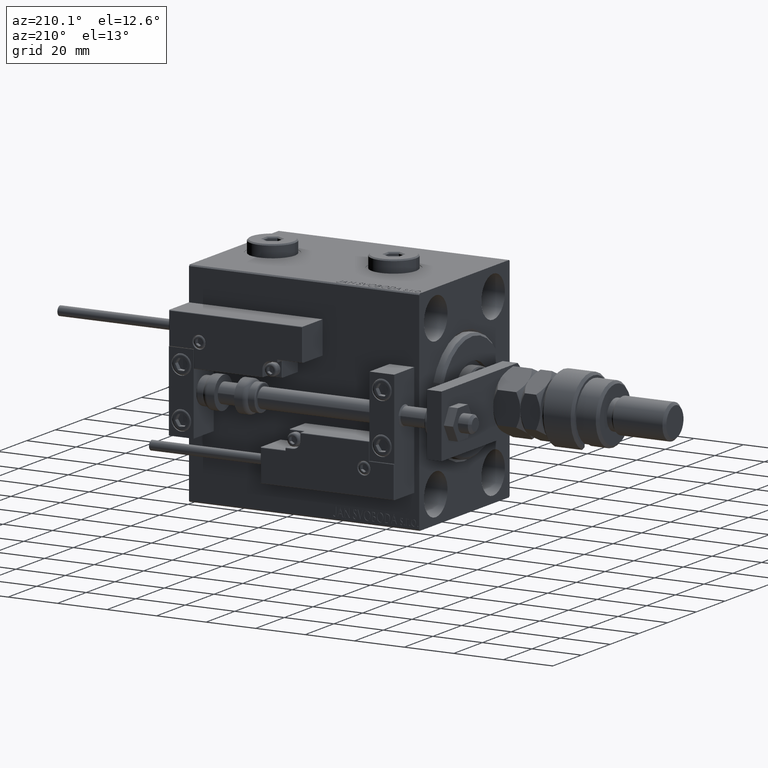
[diagram: clean part render]
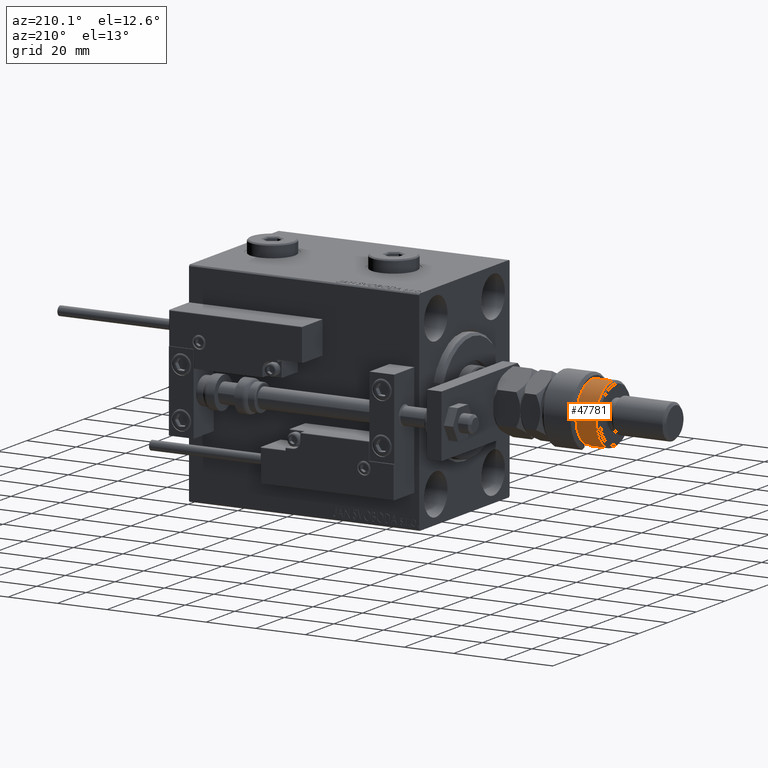
[diagram: same view with one face highlighted and labeled with its STEP entity id]
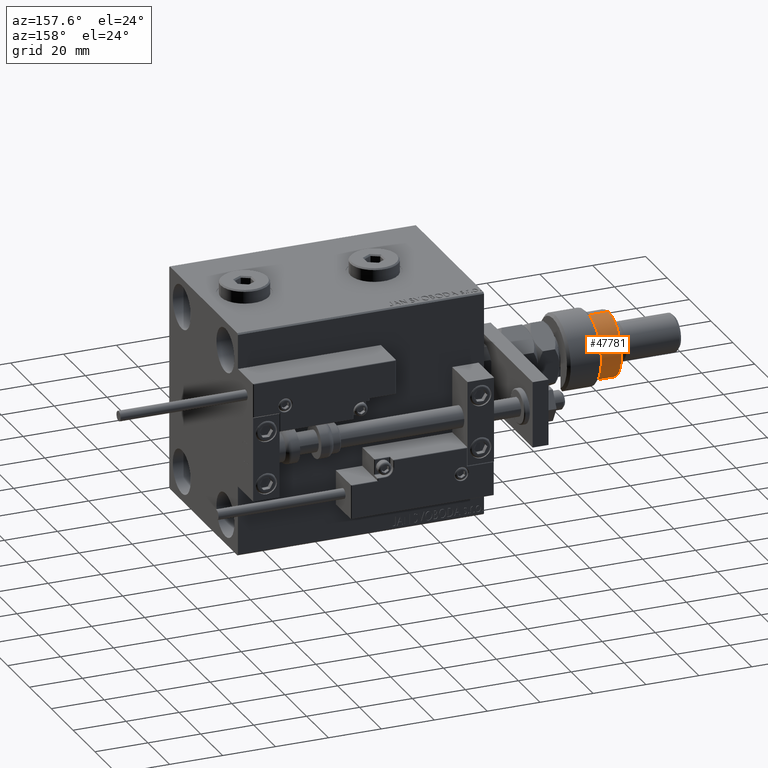
[diagram: same view with one face highlighted and labeled with its STEP entity id]
A machine part, auxiliary view. The second image highlights one B-rep face of the part: STEP entity #47781.
A second angle (auxiliary view) of the same face is appended — the face is thin or edge-on in the first view.
In plain terms, the highlighted cylindrical surface (edge-blend (fillet) strip) has radius 12 mm, axis along (1, -0, -0).
Its self-contained STEP definition (entity closure, byte-faithful):
#2144 = VERTEX_POINT ( 'NONE', #39125 ) ;
#2176 = CIRCLE ( 'NONE', #13566, 12.00000000000000178 ) ;
#2399 = FACE_OUTER_BOUND ( 'NONE', #36933, .T. ) ;
#2544 = LINE ( 'NONE', #19302, #17132 ) ;
#2727 = CARTESIAN_POINT ( 'NONE',  ( -10.39230484541326760, 6.000000000000000000, 13.00000000000000000 ) ) ;
#3300 = VERTEX_POINT ( 'NONE', #20743 ) ;
#4196 = VECTOR ( 'NONE', #14518, 1000.000000000000000 ) ;
#5550 = EDGE_CURVE ( 'NONE', #26815, #2144, #6297, .T. ) ;
#6297 = CIRCLE ( 'NONE', #50228, 12.00000000000000178 ) ;
#6581 = CARTESIAN_POINT ( 'NONE',  ( 0.000000000000000000, 0.000000000000000000, 20.99999999999999645 ) ) ;
#7068 = DIRECTION ( 'NONE',  ( -0.000000000000000000, -0.000000000000000000, -1.000000000000000000 ) ) ;
#9123 = VERTEX_POINT ( 'NONE', #36062 ) ;
#11112 = EDGE_CURVE ( 'NONE', #3300, #51721, #2176, .T. ) ;
#11182 = DIRECTION ( 'NONE',  ( -1.000000000000000000, 0.000000000000000000, 0.000000000000000000 ) ) ;
#12652 = CARTESIAN_POINT ( 'NONE',  ( 0.000000000000000000, 0.000000000000000000, 14.50000000000000000 ) ) ;
#13566 = AXIS2_PLACEMENT_3D ( 'NONE', #20354, #15658, #32988 ) ;
#14518 = DIRECTION ( 'NONE',  ( 0.000000000000000000, 0.000000000000000000, 1.000000000000000000 ) ) ;
#15658 = DIRECTION ( 'NONE',  ( 0.000000000000000000, 0.000000000000000000, 1.000000000000000000 ) ) ;
#16825 = DIRECTION ( 'NONE',  ( -0.000000000000000000, -0.000000000000000000, -1.000000000000000000 ) ) ;
#17132 = VECTOR ( 'NONE', #16825, 1000.000000000000000 ) ;
#17539 = EDGE_CURVE ( 'NONE', #41076, #26815, #42469, .T. ) ;
#19078 = ORIENTED_EDGE ( 'NONE', *, *, #5550, .F. ) ;
#19302 = CARTESIAN_POINT ( 'NONE',  ( 12.00000000000000178, 1.469576158976824144E-15, 22.00000000000000000 ) ) ;
#19476 = ORIENTED_EDGE ( 'NONE', *, *, #44184, .T. ) ;
#19582 = EDGE_CURVE ( 'NONE', #41076, #9123, #30479, .T. ) ;
#20354 = CARTESIAN_POINT ( 'NONE',  ( 0.000000000000000000, 0.000000000000000000, 13.00000000000000000 ) ) ;
#20743 = CARTESIAN_POINT ( 'NONE',  ( 12.00000000000000178, 1.469576158976824144E-15, 13.00000000000000000 ) ) ;
#21465 = CARTESIAN_POINT ( 'NONE',  ( -12.00000000000000178, 0.000000000000000000, 14.50000000000000000 ) ) ;
#23174 = DIRECTION ( 'NONE',  ( -0.000000000000000000, -0.000000000000000000, -1.000000000000000000 ) ) ;
#23290 = CYLINDRICAL_SURFACE ( 'NONE', #50653, 12.00000000000000178 ) ;
#26815 = VERTEX_POINT ( 'NONE', #21465 ) ;
#27413 = CARTESIAN_POINT ( 'NONE',  ( 0.000000000000000000, 0.000000000000000000, 22.00000000000000000 ) ) ;
#27476 = ORIENTED_EDGE ( 'NONE', *, *, #11112, .T. ) ;
#29022 = ORIENTED_EDGE ( 'NONE', *, *, #19582, .T. ) ;
#30376 = CARTESIAN_POINT ( 'NONE',  ( -12.00000000000000178, 0.000000000000000000, 20.99999999999999645 ) ) ;
#30479 = CIRCLE ( 'NONE', #48909, 12.00000000000000178 ) ;
#30801 = DIRECTION ( 'NONE',  ( 0.000000000000000000, 0.000000000000000000, -1.000000000000000000 ) ) ;
#31551 = CARTESIAN_POINT ( 'NONE',  ( -10.39230484541326760, 6.000000000000000000, 22.00000000000000000 ) ) ;
#31676 = CARTESIAN_POINT ( 'NONE',  ( -12.00000000000000178, 0.000000000000000000, 22.00000000000000000 ) ) ;
#32988 = DIRECTION ( 'NONE',  ( 1.000000000000000000, 0.000000000000000000, 0.000000000000000000 ) ) ;
#34362 = DIRECTION ( 'NONE',  ( -1.000000000000000000, 0.000000000000000000, 0.000000000000000000 ) ) ;
#34664 = DIRECTION ( 'NONE',  ( 1.000000000000000000, 0.000000000000000000, 0.000000000000000000 ) ) ;
#36062 = CARTESIAN_POINT ( 'NONE',  ( 12.00000000000000178, 1.469576158976824144E-15, 20.99999999999999645 ) ) ;
#36933 = EDGE_LOOP ( 'NONE', ( #29022, #19476, #27476, #45195, #19078, #41581 ) ) ;
#38481 = DIRECTION ( 'NONE',  ( 0.000000000000000000, 0.000000000000000000, -1.000000000000000000 ) ) ;
#39125 = CARTESIAN_POINT ( 'NONE',  ( -10.39230484541326582, 5.999999999999998224, 14.50000000000000000 ) ) ;
#39292 = LINE ( 'NONE', #31551, #4196 ) ;
#41076 = VERTEX_POINT ( 'NONE', #30376 ) ;
#41581 = ORIENTED_EDGE ( 'NONE', *, *, #17539, .F. ) ;
#42469 = LINE ( 'NONE', #31676, #48819 ) ;
#44184 = EDGE_CURVE ( 'NONE', #9123, #3300, #2544, .T. ) ;
#45195 = ORIENTED_EDGE ( 'NONE', *, *, #49614, .T. ) ;
#47781 = ADVANCED_FACE ( 'NONE', ( #2399 ), #23290, .T. ) ;
#48819 = VECTOR ( 'NONE', #23174, 1000.000000000000000 ) ;
#48909 = AXIS2_PLACEMENT_3D ( 'NONE', #6581, #30801, #34664 ) ;
#49614 = EDGE_CURVE ( 'NONE', #51721, #2144, #39292, .T. ) ;
#50228 = AXIS2_PLACEMENT_3D ( 'NONE', #12652, #38481, #34362 ) ;
#50653 = AXIS2_PLACEMENT_3D ( 'NONE', #27413, #7068, #11182 ) ;
#51721 = VERTEX_POINT ( 'NONE', #2727 ) ;